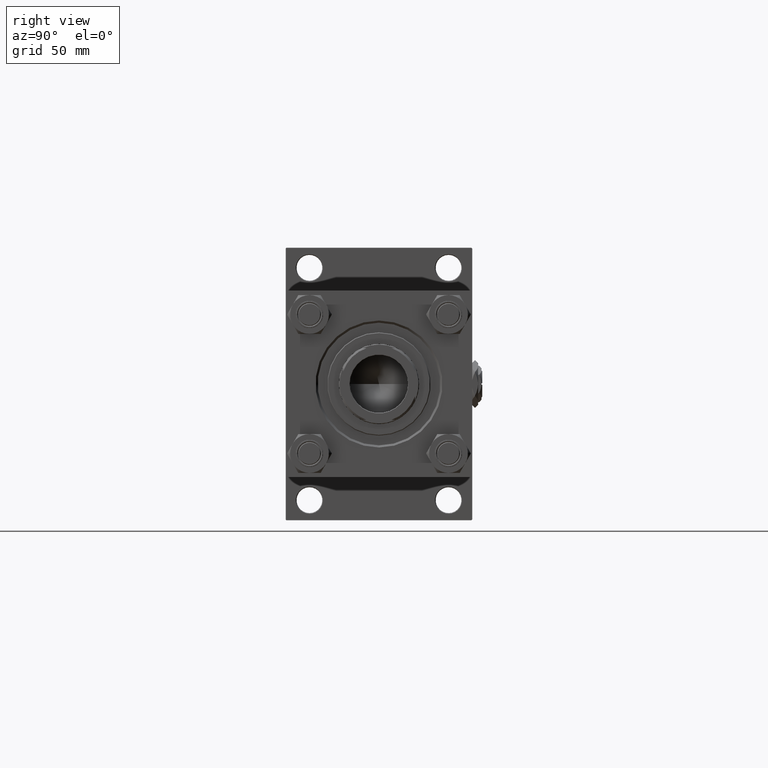
[diagram: clean part render]
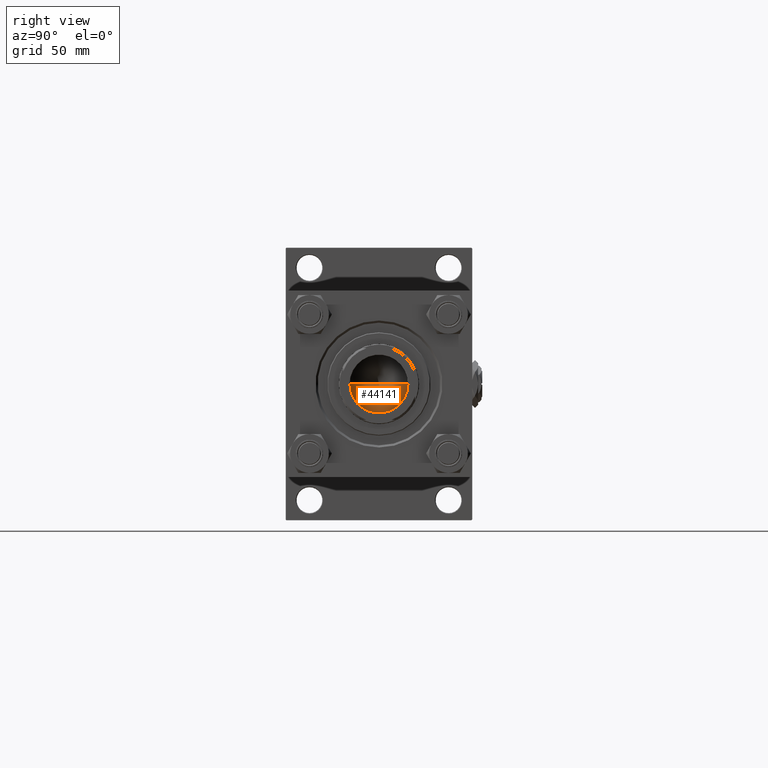
[diagram: same view with one face highlighted and labeled with its STEP entity id]
A machine part, right view. The second image highlights one B-rep face of the part: STEP entity #44141.
In plain terms, the highlighted conical surface has half-angle 59 deg.
Its self-contained STEP definition (entity closure, byte-faithful):
#2184 = EDGE_CURVE ( 'NONE', #27748, #22973, #31658, .T. ) ;
#2883 = VECTOR ( 'NONE', #40673, 1000.000000000000000 ) ;
#6539 = DIRECTION ( 'NONE',  ( 1.000000000000000000, 0.000000000000000000, 0.000000000000000000 ) ) ;
#11357 = ORIENTED_EDGE ( 'NONE', *, *, #12687, .F. ) ;
#12687 = EDGE_CURVE ( 'NONE', #26244, #22973, #37708, .T. ) ;
#13044 = EDGE_LOOP ( 'NONE', ( #11357, #32130, #41784 ) ) ;
#13564 = AXIS2_PLACEMENT_3D ( 'NONE', #30742, #46971, #6539 ) ;
#14499 = FACE_OUTER_BOUND ( 'NONE', #13044, .T. ) ;
#15172 = DIRECTION ( 'NONE',  ( -0.000000000000000000, -0.000000000000000000, 1.000000000000000000 ) ) ;
#19676 = DIRECTION ( 'NONE',  ( 1.000000000000000000, 0.000000000000000000, 0.000000000000000000 ) ) ;
#21010 = VECTOR ( 'NONE', #41698, 1000.000000000000000 ) ;
#22973 = VERTEX_POINT ( 'NONE', #44683 ) ;
#23931 = CARTESIAN_POINT ( 'NONE',  ( 0.000000000000000000, 0.000000000000000000, 347.0000000000000568 ) ) ;
#26244 = VERTEX_POINT ( 'NONE', #44311 ) ;
#27748 = VERTEX_POINT ( 'NONE', #44138 ) ;
#30742 = CARTESIAN_POINT ( 'NONE',  ( 0.000000000000000000, 0.000000000000000000, 347.0000000000000568 ) ) ;
#31658 = CIRCLE ( 'NONE', #38434, 20.24999999999998934 ) ;
#32130 = ORIENTED_EDGE ( 'NONE', *, *, #51162, .T. ) ;
#37708 = LINE ( 'NONE', #46225, #21010 ) ;
#38434 = AXIS2_PLACEMENT_3D ( 'NONE', #23931, #15172, #19676 ) ;
#40673 = DIRECTION ( 'NONE',  ( 0.8571673007021112234, 0.000000000000000000, 0.5150380749100560429 ) ) ;
#41698 = DIRECTION ( 'NONE',  ( -0.8571673007021112234, 1.049727191138617340E-16, 0.5150380749100560429 ) ) ;
#41784 = ORIENTED_EDGE ( 'NONE', *, *, #2184, .T. ) ;
#44138 = CARTESIAN_POINT ( 'NONE',  ( 20.24999999999998934, 0.000000000000000000, 347.0000000000000568 ) ) ;
#44141 = ADVANCED_FACE ( 'NONE', ( #14499 ), #44178, .F. ) ;
#44178 = CONICAL_SURFACE ( 'NONE', #13564, 20.24999999999998934, 1.029744258676652313 ) ;
#44311 = CARTESIAN_POINT ( 'NONE',  ( -1.584115414415908206E-14, 0.000000000000000000, 334.8325724646919070 ) ) ;
#44683 = CARTESIAN_POINT ( 'NONE',  ( -20.24999999999998934, 2.479909768273389117E-15, 347.0000000000000568 ) ) ;
#45426 = CARTESIAN_POINT ( 'NONE',  ( 20.24999999999998934, 0.000000000000000000, 347.0000000000000568 ) ) ;
#46225 = CARTESIAN_POINT ( 'NONE',  ( -20.24999999999998934, 2.479909768273389117E-15, 347.0000000000000568 ) ) ;
#46971 = DIRECTION ( 'NONE',  ( -0.000000000000000000, -0.000000000000000000, 1.000000000000000000 ) ) ;
#48653 = LINE ( 'NONE', #45426, #2883 ) ;
#51162 = EDGE_CURVE ( 'NONE', #26244, #27748, #48653, .T. ) ;